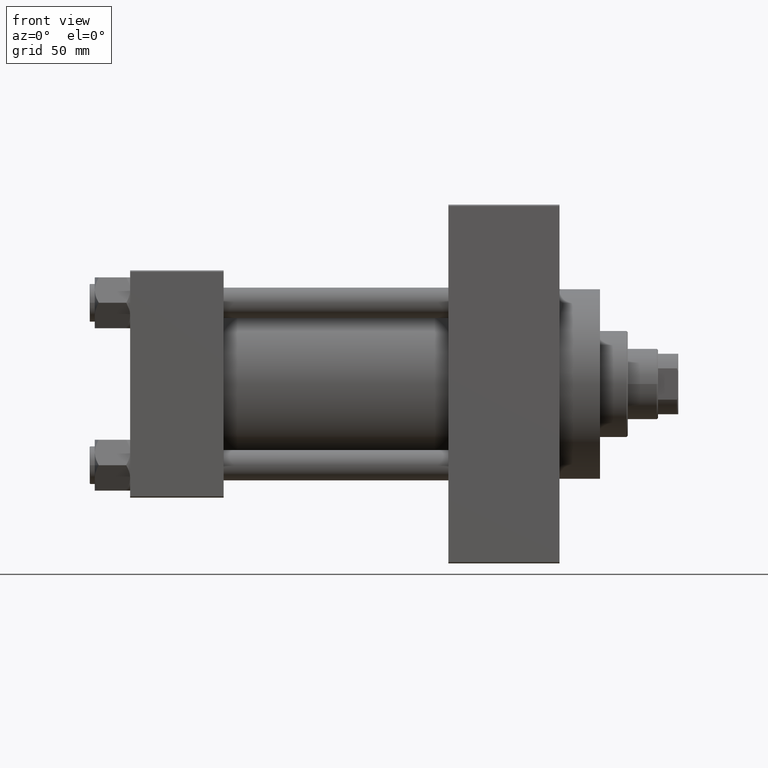
[diagram: clean part render]
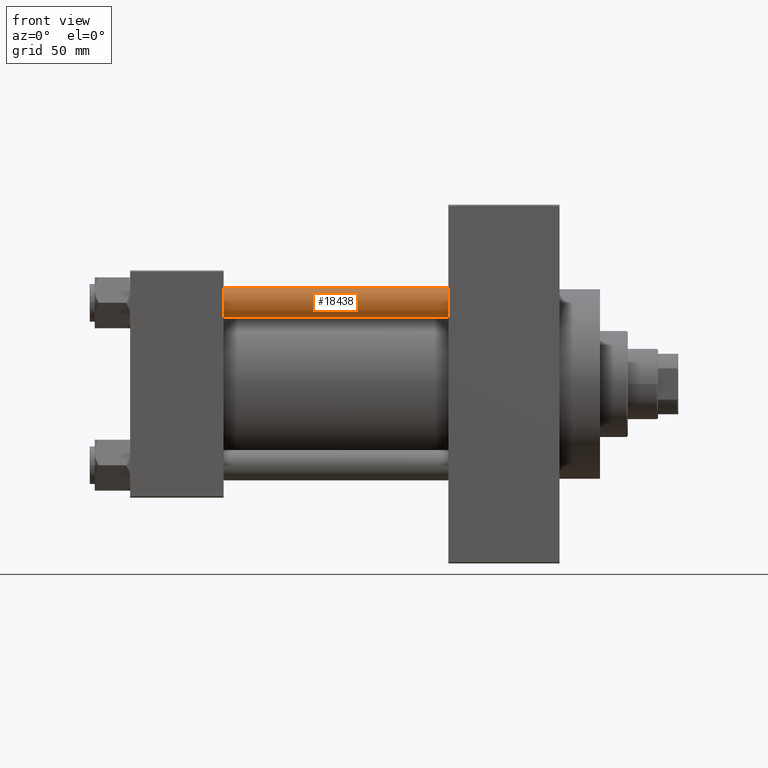
[diagram: same view with one face highlighted and labeled with its STEP entity id]
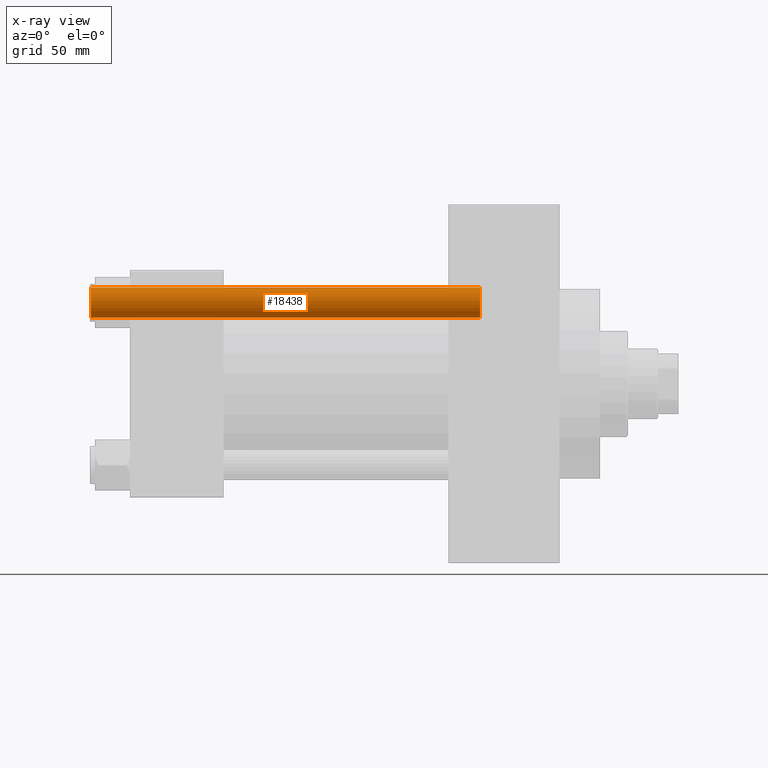
[diagram: x-ray of the same camera — body ghosted, the highlighted face saturated]
A machine part, front view. The second image highlights one B-rep face of the part: STEP entity #18438.
The next image is the same camera in x-ray: the body ghosted, the highlighted face saturated — about 0% of this face is hidden behind the body in this view.
In plain terms, the highlighted cylindrical surface (edge-blend (fillet) strip) has radius 6 mm, axis along (1, 0, 0).
Its self-contained STEP definition (entity closure, byte-faithful):
#678 = DIRECTION ( 'NONE',  ( -0.000000000000000000, -0.000000000000000000, -1.000000000000000000 ) ) ;
#1264 = EDGE_CURVE ( 'NONE', #48596, #47767, #27638, .T. ) ;
#2963 = EDGE_CURVE ( 'NONE', #47767, #38600, #26265, .T. ) ;
#4032 = AXIS2_PLACEMENT_3D ( 'NONE', #11072, #33693, #37665 ) ;
#5365 = AXIS2_PLACEMENT_3D ( 'NONE', #28527, #43679, #40199 ) ;
#7544 = EDGE_LOOP ( 'NONE', ( #17180, #22418, #9280, #22929 ) ) ;
#8631 = CARTESIAN_POINT ( 'NONE',  ( 6.000000000000000888, 7.347880794884120722E-16, 154.5000000000000000 ) ) ;
#9280 = ORIENTED_EDGE ( 'NONE', *, *, #2963, .T. ) ;
#11072 = CARTESIAN_POINT ( 'NONE',  ( 0.000000000000000000, 0.000000000000000000, 0.4999999999999726885 ) ) ;
#13066 = AXIS2_PLACEMENT_3D ( 'NONE', #37840, #27149, #15225 ) ;
#14025 = VERTEX_POINT ( 'NONE', #16447 ) ;
#15225 = DIRECTION ( 'NONE',  ( -1.000000000000000000, 0.000000000000000000, 0.000000000000000000 ) ) ;
#16400 = VECTOR ( 'NONE', #38322, 1000.000000000000000 ) ;
#16447 = CARTESIAN_POINT ( 'NONE',  ( -6.000000000000000888, 0.000000000000000000, 154.5000000000000000 ) ) ;
#16484 = CIRCLE ( 'NONE', #5365, 6.000000000000000888 ) ;
#17180 = ORIENTED_EDGE ( 'NONE', *, *, #26176, .T. ) ;
#18438 = ADVANCED_FACE ( 'NONE', ( #19208 ), #42536, .T. ) ;
#19208 = FACE_OUTER_BOUND ( 'NONE', #7544, .T. ) ;
#20078 = LINE ( 'NONE', #35001, #32265 ) ;
#22418 = ORIENTED_EDGE ( 'NONE', *, *, #1264, .T. ) ;
#22688 = CARTESIAN_POINT ( 'NONE',  ( 6.000000000000000888, 7.347880794884120722E-16, 155.0000000000000000 ) ) ;
#22929 = ORIENTED_EDGE ( 'NONE', *, *, #23140, .F. ) ;
#23140 = EDGE_CURVE ( 'NONE', #14025, #38600, #20078, .T. ) ;
#26176 = EDGE_CURVE ( 'NONE', #14025, #48596, #16484, .T. ) ;
#26265 = CIRCLE ( 'NONE', #4032, 6.000000000000000888 ) ;
#27149 = DIRECTION ( 'NONE',  ( -0.000000000000000000, -0.000000000000000000, -1.000000000000000000 ) ) ;
#27638 = LINE ( 'NONE', #22688, #16400 ) ;
#28527 = CARTESIAN_POINT ( 'NONE',  ( 0.000000000000000000, 0.000000000000000000, 154.5000000000000000 ) ) ;
#32265 = VECTOR ( 'NONE', #678, 1000.000000000000000 ) ;
#33693 = DIRECTION ( 'NONE',  ( -0.000000000000000000, -0.000000000000000000, 1.000000000000000000 ) ) ;
#34438 = CARTESIAN_POINT ( 'NONE',  ( 6.000000000000000888, 7.347880794884120722E-16, 0.4999999999999726885 ) ) ;
#35001 = CARTESIAN_POINT ( 'NONE',  ( -6.000000000000000888, 0.000000000000000000, 155.0000000000000000 ) ) ;
#37665 = DIRECTION ( 'NONE',  ( 1.000000000000000000, 0.000000000000000000, 0.000000000000000000 ) ) ;
#37840 = CARTESIAN_POINT ( 'NONE',  ( 0.000000000000000000, 0.000000000000000000, 155.0000000000000000 ) ) ;
#38322 = DIRECTION ( 'NONE',  ( -0.000000000000000000, -0.000000000000000000, -1.000000000000000000 ) ) ;
#38600 = VERTEX_POINT ( 'NONE', #42854 ) ;
#40199 = DIRECTION ( 'NONE',  ( 1.000000000000000000, 0.000000000000000000, 0.000000000000000000 ) ) ;
#42536 = CYLINDRICAL_SURFACE ( 'NONE', #13066, 6.000000000000000888 ) ;
#42854 = CARTESIAN_POINT ( 'NONE',  ( -6.000000000000000888, 0.000000000000000000, 0.4999999999999726885 ) ) ;
#43679 = DIRECTION ( 'NONE',  ( 0.000000000000000000, 0.000000000000000000, -1.000000000000000000 ) ) ;
#47767 = VERTEX_POINT ( 'NONE', #34438 ) ;
#48596 = VERTEX_POINT ( 'NONE', #8631 ) ;